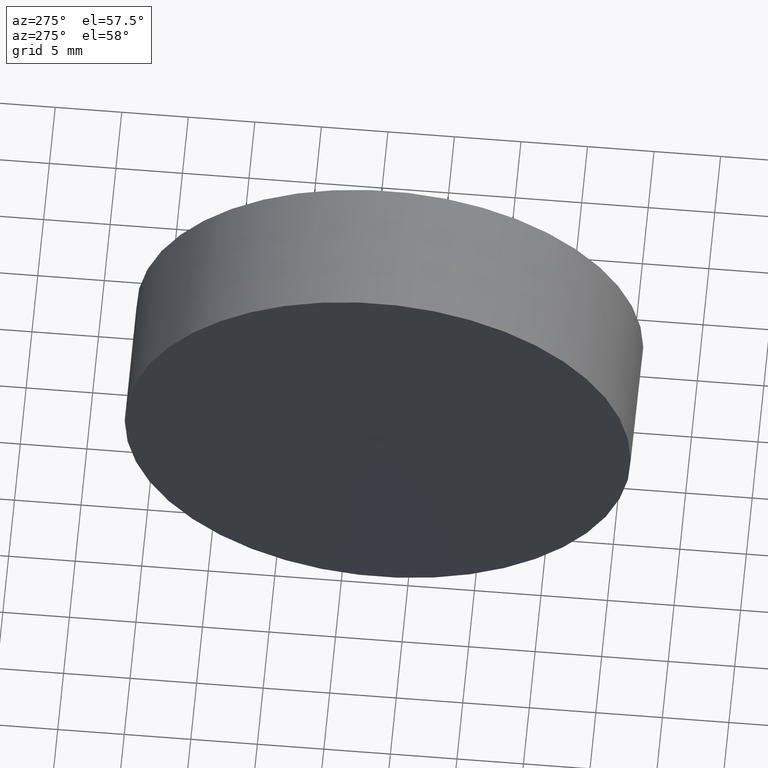
[diagram: clean part render]
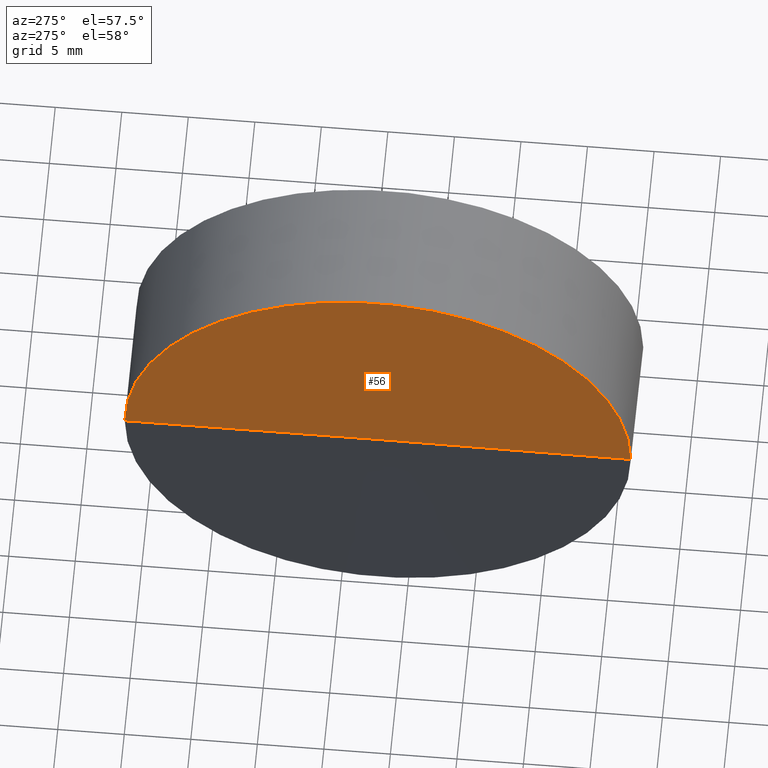
[diagram: same view with one face highlighted and labeled with its STEP entity id]
A machine part, auxiliary view. The second image highlights one B-rep face of the part: STEP entity #56.
In plain terms, the highlighted conical surface has half-angle 89.813 deg.
Its self-contained STEP definition (entity closure, byte-faithful):
#2 = EDGE_CURVE ( 'NONE', #54, #84, #181, .T. ) ;
#5 = DIRECTION ( 'NONE',  ( -0.003255957023717929400, -0.9999946993578815400, 0.0000000000000000000 ) ) ;
#11 = CONICAL_SURFACE ( 'NONE', #120, 0.02005962748784459100, 1.567540364018758600 ) ;
#13 = VERTEX_POINT ( 'NONE', #44 ) ;
#20 = EDGE_LOOP ( 'NONE', ( #37, #32, #151 ) ) ;
#32 = ORIENTED_EDGE ( 'NONE', *, *, #40, .T. ) ;
#37 = ORIENTED_EDGE ( 'NONE', *, *, #2, .F. ) ;
#40 = EDGE_CURVE ( 'NONE', #54, #13, #53, .T. ) ;
#44 = CARTESIAN_POINT ( 'NONE',  ( 260.0378462263646500, 58.25346315443084700, 2.329273180552113800E-015 ) ) ;
#52 = CARTESIAN_POINT ( 'NONE',  ( 260.0997743951857000, 77.27332125172313200, 0.0000000000000000000 ) ) ;
#53 = LINE ( 'NONE', #172, #95 ) ;
#54 = VERTEX_POINT ( 'NONE', #98 ) ;
#56 = ADVANCED_FACE ( 'NONE', ( #83 ), #11, .F. ) ;
#59 = CIRCLE ( 'NONE', #112, 19.01995891528760300 ) ;
#60 = CARTESIAN_POINT ( 'NONE',  ( 260.1617025640067600, 77.29317934901541800, 2.456595859507714400E-018 ) ) ;
#70 = DIRECTION ( 'NONE',  ( -0.9999946993578815400, 0.003255957023718254200, -0.0000000000000000000 ) ) ;
#83 = FACE_OUTER_BOUND ( 'NONE', #20, .T. ) ;
#84 = VERTEX_POINT ( 'NONE', #102 ) ;
#95 = VECTOR ( 'NONE', #170, 1000.000000000000100 ) ;
#98 = CARTESIAN_POINT ( 'NONE',  ( 260.1617025640067600, 77.27311961519809800, 0.0000000000000000000 ) ) ;
#99 = CARTESIAN_POINT ( 'NONE',  ( 260.1616372507217500, 77.27311982785647600, 0.0000000000000000000 ) ) ;
#102 = CARTESIAN_POINT ( 'NONE',  ( 260.1617025640067600, 96.29317934901541800, 0.0000000000000000000 ) ) ;
#111 = VECTOR ( 'NONE', #186, 1000.000000000000000 ) ;
#112 = AXIS2_PLACEMENT_3D ( 'NONE', #52, #147, #5 ) ;
#120 = AXIS2_PLACEMENT_3D ( 'NONE', #99, #70, #169 ) ;
#147 = DIRECTION ( 'NONE',  ( -0.9999946993578815400, 0.003255957023718254200, -0.0000000000000000000 ) ) ;
#151 = ORIENTED_EDGE ( 'NONE', *, *, #185, .T. ) ;
#169 = DIRECTION ( 'NONE',  ( -0.003255957023238136500, -0.9999946993578828800, 0.0000000000000000000 ) ) ;
#170 = DIRECTION ( 'NONE',  ( -0.006511879529630542500, -0.9999787974877225600, 0.0000000000000000000 ) ) ;
#172 = CARTESIAN_POINT ( 'NONE',  ( 260.1615719374367500, 77.25306030669753500, 0.0000000000000000000 ) ) ;
#181 = LINE ( 'NONE', #60, #111 ) ;
#185 = EDGE_CURVE ( 'NONE', #13, #84, #59, .T. ) ;
#186 = DIRECTION ( 'NONE',  ( 4.801029365730790200E-013, 1.000000000000000000, 1.224640307732951100E-016 ) ) ;